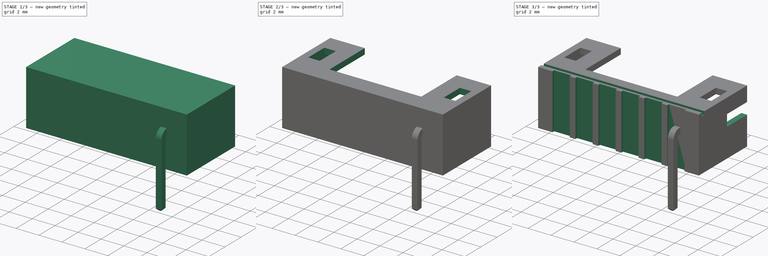
[diagram: build sequence overview — one tinted view per stage of 3, left to right]
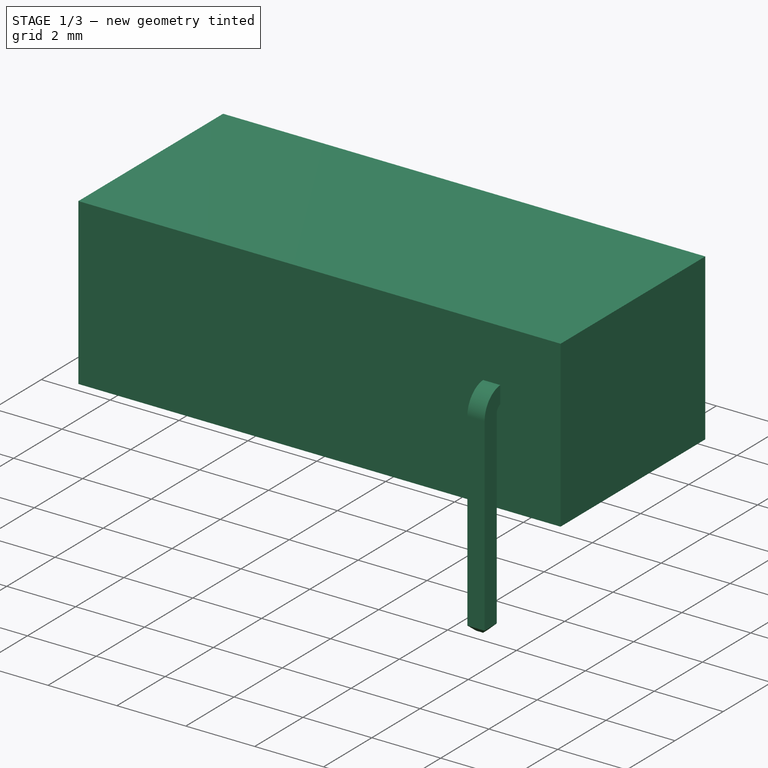
[diagram: stage 1 of 3 — iso view after this stage's code; geometry added in this stage tinted green]
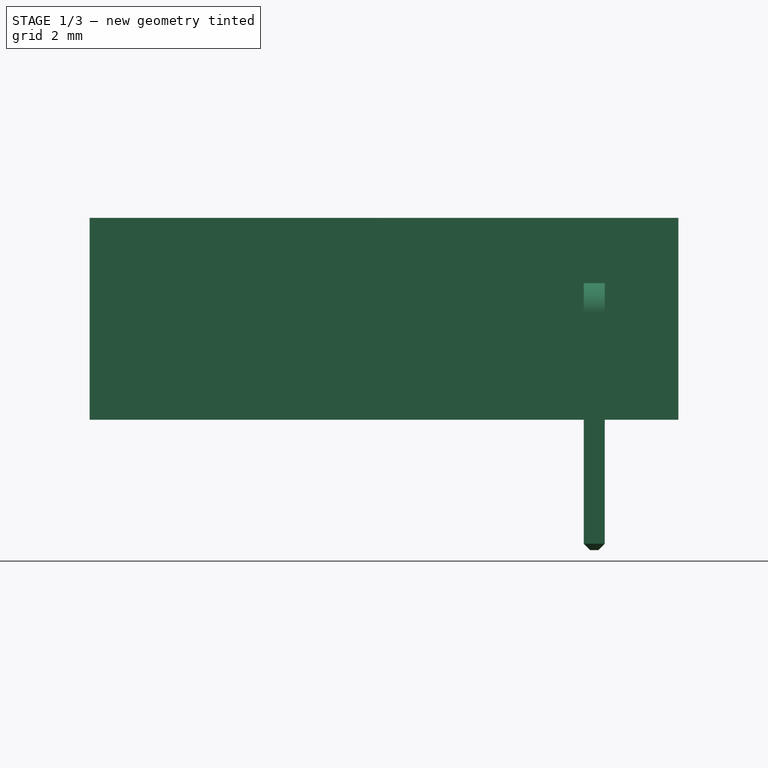
[diagram: stage 1 of 3 — front view after this stage's code; geometry added in this stage tinted green]
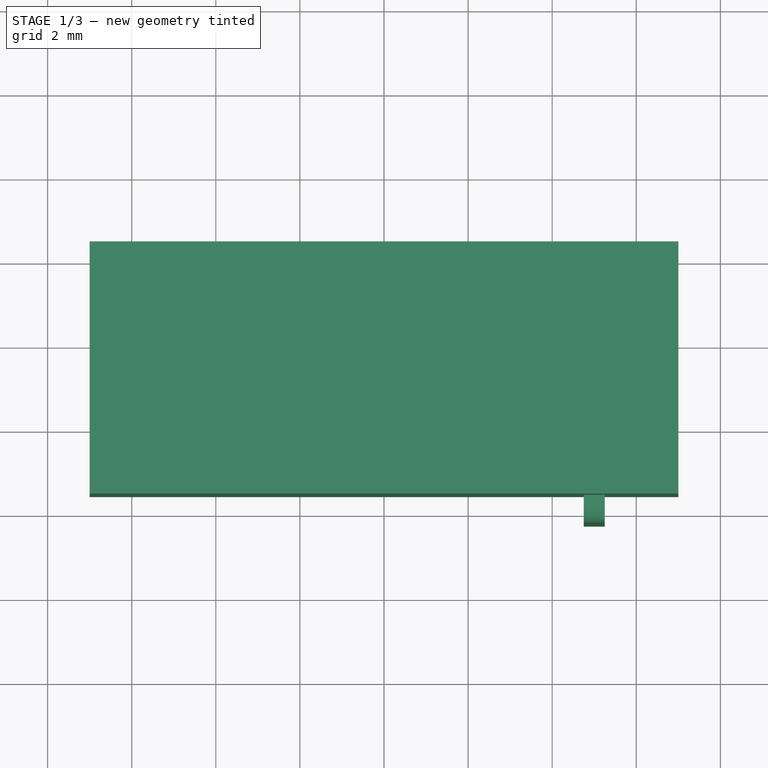
[diagram: stage 1 of 3 — top view after this stage's code; geometry added in this stage tinted green]
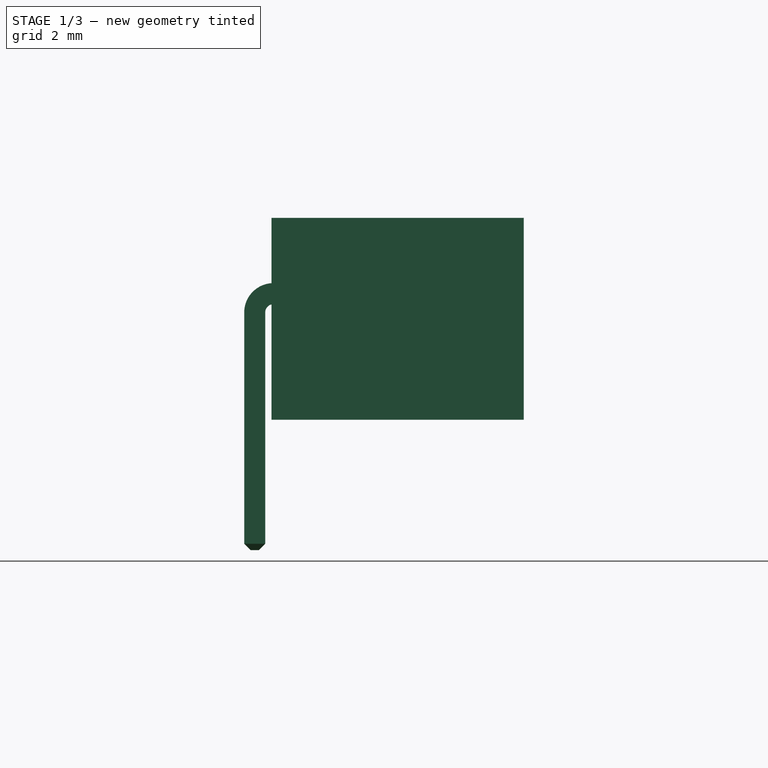
[diagram: stage 1 of 3 — right view after this stage's code; geometry added in this stage tinted green]
FCSTD DOCUMENT  (FreeCAD 0.20R29177 +426 (Git))
Label: Connector4P
License: All rights reserved
LicenseURL: http://en.wikipedia.org/wiki/All_rights_reserved
objects: Sketcher::SketchObject×6, App::Link×5, PartDesign::Pocket×3, PartDesign::Pad×2, PartDesign::Body×2, PartDesign::Thickness×1, PartDesign::LinearPattern×1, PartDesign::Chamfer×1, Spreadsheet::Sheet×1, App::Part×1
note: 23 computed .brp shape members not serialized (recipe doc carries the construction recipe); baked Part::Feature solids carry a one-line shape summary decoded from their .brp

FEATURE [Sketcher::SketchObject] Sketch
  FullyConstrained = true
  MapMode = 5
  Support = -> [XY_Plane]
  expr: Constraints[9] = 2 * <<Spreadsheet>>.Pins + 2
  sketch-geometry (4):
    g0: LineSegment StartX=-7 StartY=0.4 StartZ=0 EndX=7 EndY=0.4 EndZ=0
    g1: LineSegment StartX=7 StartY=0.4 StartZ=0 EndX=7 EndY=6.4 EndZ=0
    g2: LineSegment StartX=7 StartY=6.4 StartZ=0 EndX=-7 EndY=6.4 EndZ=0
    g3: LineSegment StartX=-7 StartY=6.4 StartZ=0 EndX=-7 EndY=0.4 EndZ=0
  constraints (11):
    c: Coincident(g0,g1)
    c: Coincident(g1,g2)
    c: Coincident(g2,g3)
    c: Coincident(g3,g0)
    c: Horizontal(g0)
    c: Vertical(g1)
    c: Vertical(g3)
    c: DistanceY(g2) = 6.4
    c: DistanceY(g3,g3) = 6
    c: DistanceX(g2,g2) = 14
    c: Symmetric(g2,g1,g-2)
FEATURE [PartDesign::Pad] Pad
  Direction = (0,0,1)
  Length = 4.8
  Length2 = 10
  Profile = -> Sketch
  ReferenceAxis = -> Sketch [N_Axis]
  Type = 0
FEATURE [PartDesign::Body] Body  label="Housing"
  Group = -> [Sketch,Pad,Thickness,Sketch001,Pocket,Sketch002,Pocket001,Sketch003,Sketch004,Pocket002,LinearPattern]
  Origin = -> Origin
  Tip = -> LinearPattern
FEATURE [Sketcher::SketchObject] Sketch005
  AttachmentOffset = pos=(0,0,5) rot=(0,0,1;0rad)
  FullyConstrained = true
  MapMode = 5
  Placement = pos=(5,-1.1e-15,1.1e-15) rot=(0.57735,0.57735,0.57735;2.0944rad)
  Support = -> [YZ_Plane001]
  expr: .AttachmentOffset.Base.z = <<Spreadsheet>>.Pins - 1
  sketch-geometry (9):
    g0: LineSegment StartX=-0.25 StartY=-3.1 StartZ=0 EndX=-0.25 EndY=2.55 EndZ=0
    g1: ArcOfCircle CenterX=0.45 CenterY=2.55 CenterZ=0 NormalX=0 NormalY=0 NormalZ=1 AngleXU=0 Radius=0.7 StartAngle=1.5708 EndAngle=3.14159
    g2: LineSegment StartX=0.45 StartY=3.25 StartZ=0 EndX=5.6 EndY=3.25 EndZ=0
    g3: LineSegment StartX=5.6 StartY=3.25 StartZ=0 EndX=5.6 EndY=2.75 EndZ=0
    g4: LineSegment StartX=5.6 StartY=2.75 StartZ=0 EndX=0.45 EndY=2.75 EndZ=0
    g5: LineSegment StartX=0.25 StartY=2.55 StartZ=0 EndX=0.25 EndY=-3.1 EndZ=0
    g6: LineSegment StartX=0.25 StartY=-3.1 StartZ=0 EndX=-0.25 EndY=-3.1 EndZ=0
    g7: ArcOfCircle CenterX=0.45 CenterY=2.55 CenterZ=0 NormalX=0 NormalY=0 NormalZ=1 AngleXU=0 Radius=0.2 StartAngle=1.5708 EndAngle=3.14159
    g8: GeomPoint X=5.6 Y=3 Z=0
  constraints (21):
    c: Vertical(g0)
    c: Tangent(g0,g1) = 1.5708
    c: Tangent(g1,g2) = 1.5708
    c: Coincident(g2,g3)
    c: Coincident(g3,g4)
    c: Horizontal(g4)
    c: Vertical(g5)
    c: Coincident(g5,g6)
    c: Coincident(g6,g0)
    c: Horizontal(g2)
    c: Vertical(g3)
    c: Tangent(g4,g7) = -1.5708
    c: Tangent(g5,g7) = -1.5708
    c: Coincident(g7,g1)
    c: Symmetric(g3,g3,g8)
    c: DistanceY(g8) = 3
    c: Symmetric(g0,g5,g-2)
    c: DistanceY(g0) = -3.1
    c: DistanceX(g6,g6) = 0.5
    c: Radius(g7) = 0.2
    c: DistanceX(g2) = 5.6
FEATURE [PartDesign::Pad] Pad001
  Direction = (1,-2e-16,3e-16)
  Length = 0.5
  Length2 = 10
  Midplane = true
  Placement = pos=(0,0,0) rot=(0.57735,0.57735,0.57735;2.0944rad)
  Profile = -> Sketch005
  ReferenceAxis = -> Sketch005 [N_Axis]
  Type = 0
FEATURE [App::Link] Link  label="Pin2"
  LinkPlacement = pos=(-2,2.38419e-07,0) rot=(0,0,1;0rad)
  LinkedObject = -> Body001
  Placement = pos=(-2,2.38419e-07,0) rot=(0,0,1;0rad)
FEATURE [App::Link] Link001  label="Pin3"
  LinkPlacement = pos=(-4,4.76837e-07,0) rot=(0,0,1;0rad)
  LinkedObject = -> Body001
  Placement = pos=(-4,4.76837e-07,0) rot=(0,0,1;0rad)
FEATURE [App::Link] Link002  label="Pin4"
  LinkPlacement = pos=(-6,7.15256e-07,0) rot=(0,0,1;0rad)
  LinkedObject = -> Body001
  Placement = pos=(-6,7.15256e-07,0) rot=(0,0,1;0rad)
FEATURE [PartDesign::Chamfer] Chamfer
  Angle = 45
  Base = -> Pad001 [Face4,Face8]
  BaseFeature = -> Pad001
  ChamferType = 0
  FlipDirection = false
  Placement = pos=(0,0,0) rot=(0.57735,0.57735,0.57735;2.0944rad)
  Size = 0.15
  Size2 = 1
  SupportTransform = false
  UseAllEdges = false
FEATURE [PartDesign::Body] Body001  label="Pin1"
  Group = -> [Sketch005,Pad001,Chamfer]
  Origin = -> Origin001
  Tip = -> Chamfer
FEATURE [Spreadsheet::Sheet] Spreadsheet
  cells = A1=Pins; B1(Pins)=6
FEATURE [App::Link] Link003  label="Pin5"
  LinkPlacement = pos=(-8,9.53674e-07,0) rot=(0,0,1;0rad)
  LinkedObject = -> Body001
  Placement = pos=(-8,9.53674e-07,0) rot=(0,0,1;0rad)
FEATURE [App::Link] Link004  label="Pin6"
  LinkPlacement = pos=(-10,1.19209e-06,0) rot=(0,0,1;0rad)
  LinkedObject = -> Body001
  Placement = pos=(-10,1.19209e-06,0) rot=(0,0,1;0rad)
FEATURE [App::Part] Part  label="Connector P=2.0 6x"
  Group = -> [Body,Body001,Link001,Link,Link002,Link003,Link004]
  Origin = -> Origin002
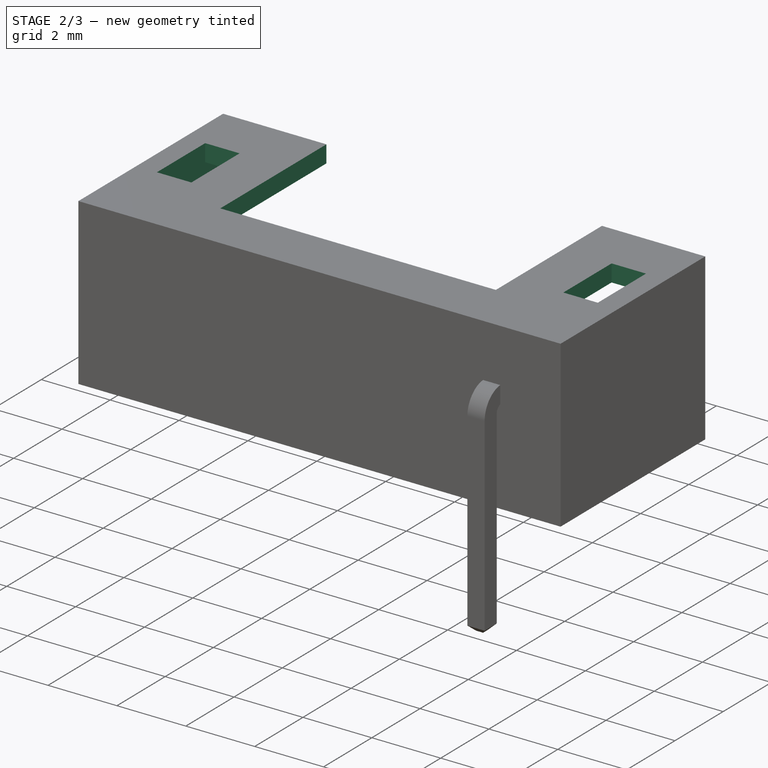
[diagram: stage 2 of 3 — iso view after this stage's code; geometry added in this stage tinted green]
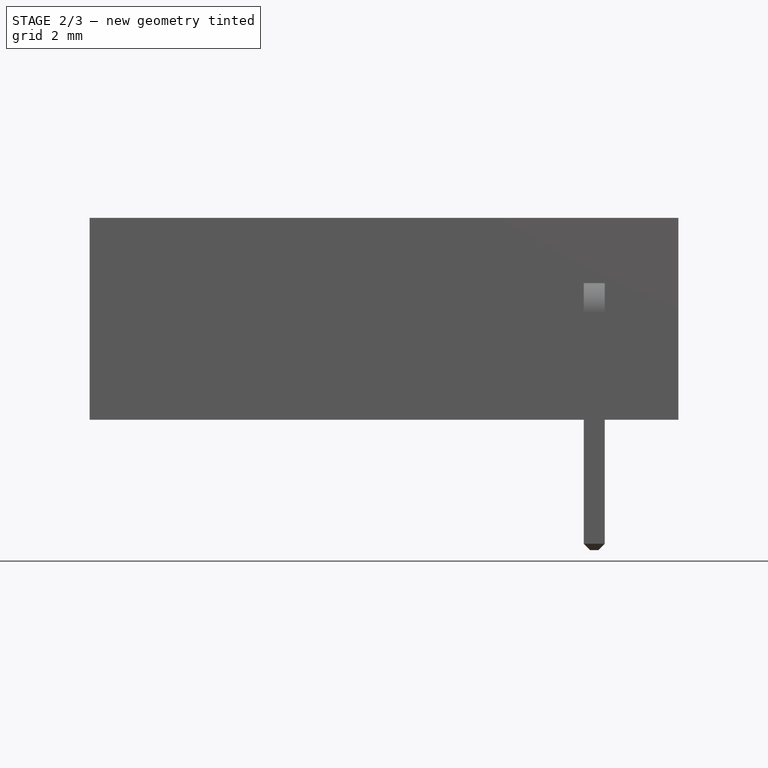
[diagram: stage 2 of 3 — front view after this stage's code; geometry added in this stage tinted green]
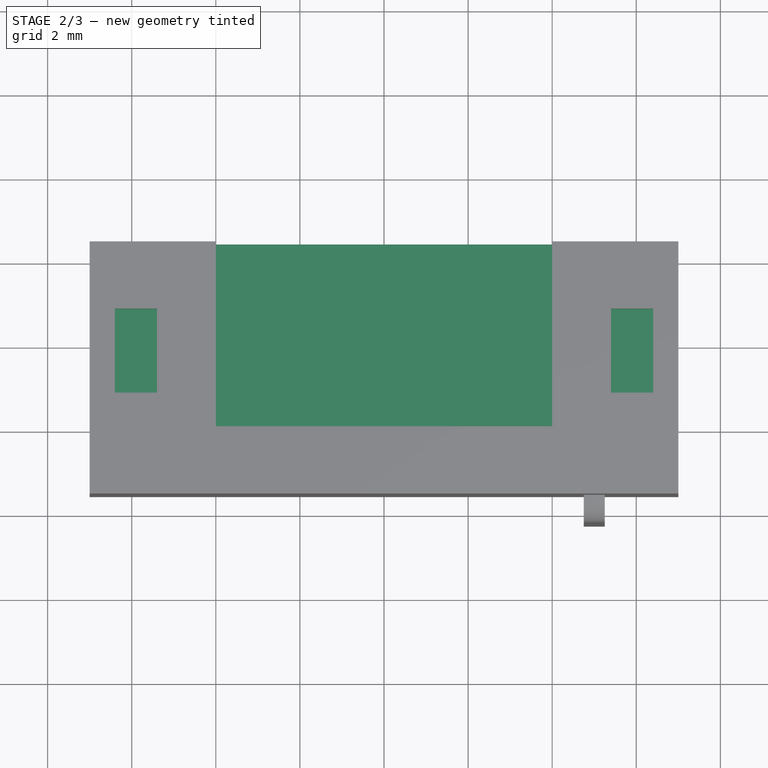
[diagram: stage 2 of 3 — top view after this stage's code; geometry added in this stage tinted green]
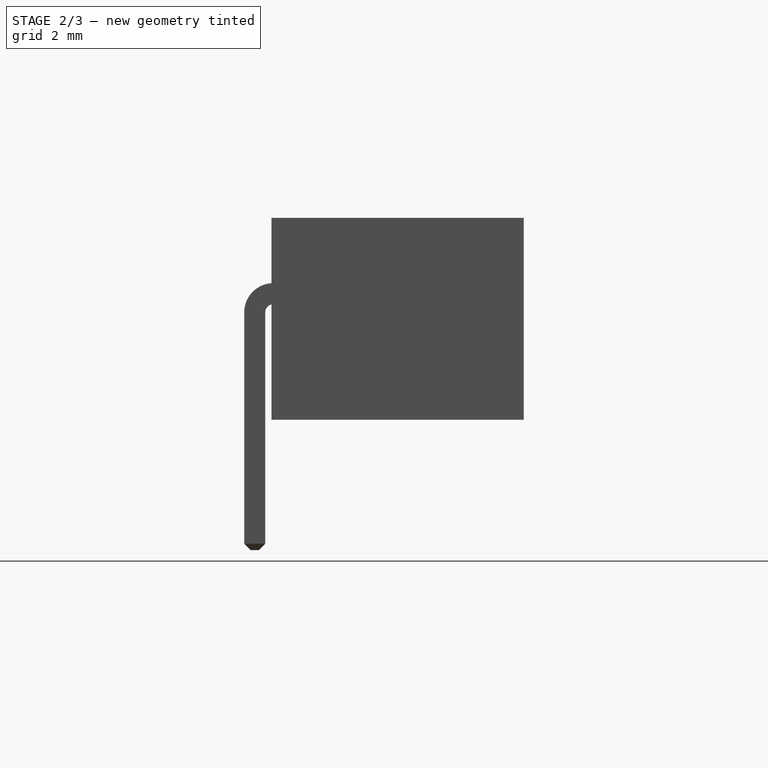
[diagram: stage 2 of 3 — right view after this stage's code; geometry added in this stage tinted green]
FEATURE [PartDesign::Thickness] Thickness
  Base = -> Pad [Face3]
  BaseFeature = -> Pad
  Intersection = false
  Join = 0
  Mode = 0
  Reversed = true
  SupportTransform = false
  Value = 0.5
FEATURE [Sketcher::SketchObject] Sketch001
  AttachmentOffset = pos=(0,0,4.8) rot=(0,0,1;0rad)
  ExternalGeometry = -> [Sketch]
  FullyConstrained = true
  MapMode = 5
  Placement = pos=(0,0,4.8) rot=(0,0,1;0rad)
  Support = -> [XY_Plane]
  sketch-geometry (12):
    g0: LineSegment StartX=-4 StartY=6.4 StartZ=0 EndX=4 EndY=6.4 EndZ=0
    g1: LineSegment StartX=4 StartY=6.4 StartZ=0 EndX=4 EndY=2 EndZ=0
    g2: LineSegment StartX=4 StartY=2 StartZ=0 EndX=-4 EndY=2 EndZ=0
    g3: LineSegment StartX=-4 StartY=2 StartZ=0 EndX=-4 EndY=6.4 EndZ=0
    g4: LineSegment StartX=6.4 StartY=4.8 StartZ=0 EndX=5.4 EndY=4.8 EndZ=0
    g5: LineSegment StartX=5.4 StartY=4.8 StartZ=0 EndX=5.4 EndY=2.8 EndZ=0
    g6: LineSegment StartX=5.4 StartY=2.8 StartZ=0 EndX=6.4 EndY=2.8 EndZ=0
    g7: LineSegment StartX=6.4 StartY=2.8 StartZ=0 EndX=6.4 EndY=4.8 EndZ=0
    g8: LineSegment StartX=-5.4 StartY=4.8 StartZ=0 EndX=-6.4 EndY=4.8 EndZ=0
    g9: LineSegment StartX=-6.4 StartY=4.8 StartZ=0 EndX=-6.4 EndY=2.8 EndZ=0
    g10: LineSegment StartX=-6.4 StartY=2.8 StartZ=0 EndX=-5.4 EndY=2.8 EndZ=0
    g11: LineSegment StartX=-5.4 StartY=2.8 StartZ=0 EndX=-5.4 EndY=4.8 EndZ=0
  constraints (33):
    c: Coincident(g0,g1)
    c: Coincident(g1,g2)
    c: Coincident(g2,g3)
    c: Coincident(g3,g0)
    c: Horizontal(g2)
    c: Vertical(g1)
    c: Vertical(g3)
    c: Symmetric(g0,g0,g-2)
    c: PointOnObject(g0,g-3)
    c: DistanceY(g3,g3) = 4.4
    c: Coincident(g4,g5)
    c: Coincident(g5,g6)
    c: Coincident(g6,g7)
    c: Coincident(g7,g4)
    c: Horizontal(g4)
    c: Horizontal(g6)
    c: Vertical(g5)
    c: Vertical(g7)
    c: Coincident(g8,g9)
    c: Coincident(g9,g10)
    c: Coincident(g10,g11)
    c: Coincident(g11,g8)
    c: Horizontal(g8)
    c: Horizontal(g10)
    c: Vertical(g9)
    c: Vertical(g11)
    c: Symmetric(g8,g4,g-2)
    c: Symmetric(g9,g6,g-2)
    c: DistanceX(g8,g8) = 1
    c: DistanceY(g11,g11) = 2
    c: DistanceY(g8,g-3) = 1.6
    c: DistanceX(g-3,g8) = 0.6
    c: DistanceX(g-3,g0) = 3
FEATURE [PartDesign::Pocket] Pocket
  BaseFeature = -> Thickness
  Direction = (0,0,-1)
  Length = 5
  Length2 = 5
  Profile = -> Sketch001
  ReferenceAxis = -> Sketch001 [N_Axis]
  Type = 2
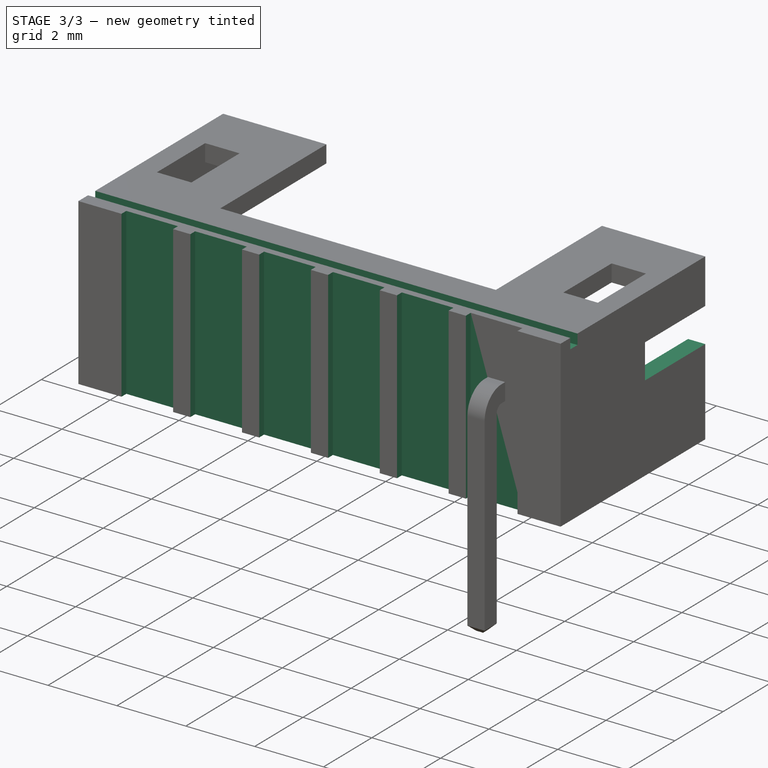
[diagram: stage 3 of 3 — iso view after this stage's code; geometry added in this stage tinted green]
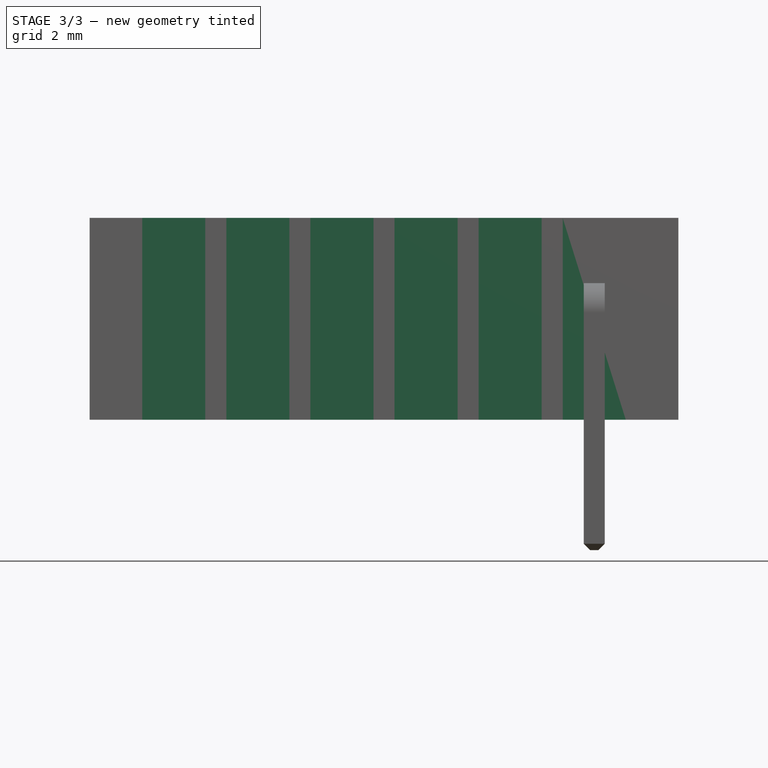
[diagram: stage 3 of 3 — front view after this stage's code; geometry added in this stage tinted green]
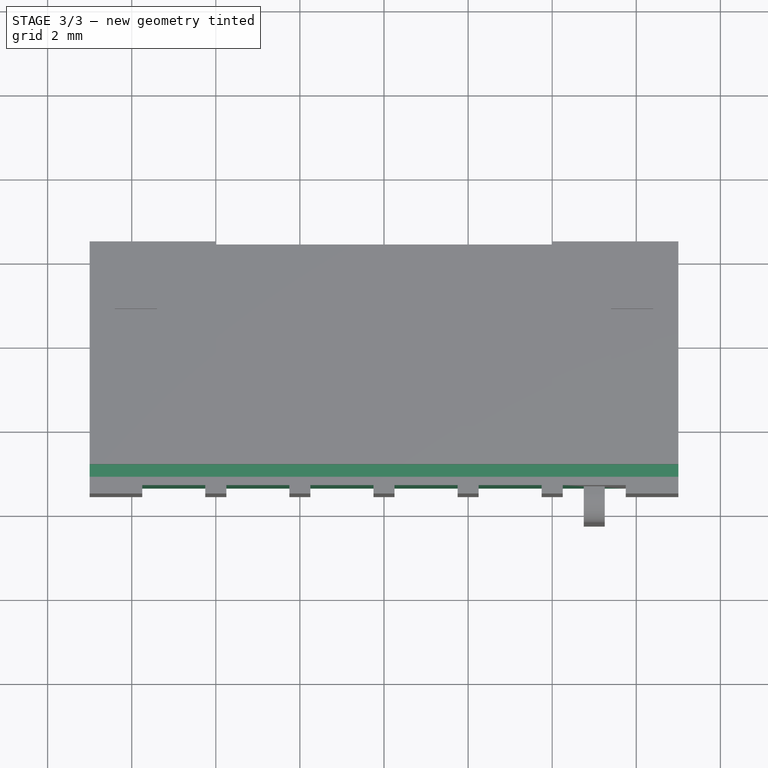
[diagram: stage 3 of 3 — top view after this stage's code; geometry added in this stage tinted green]
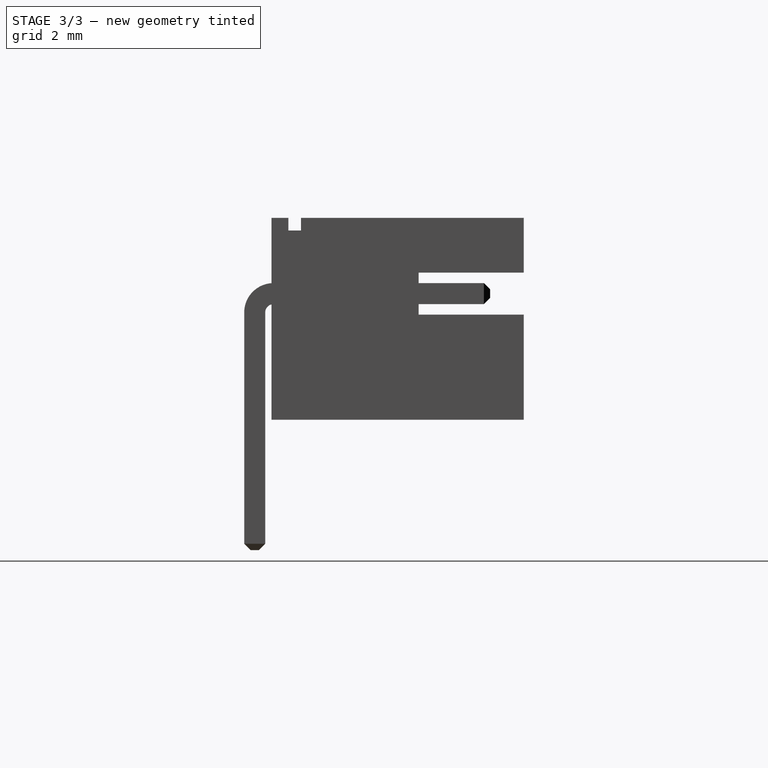
[diagram: stage 3 of 3 — right view after this stage's code; geometry added in this stage tinted green]
FEATURE [Sketcher::SketchObject] Sketch002
  ExternalGeometry = -> [Sketch]
  FullyConstrained = true
  MapMode = 5
  Placement = pos=(0,0,0) rot=(0.57735,0.57735,0.57735;2.0944rad)
  Support = -> [YZ_Plane]
  expr: Constraints[24] = <<Pad>>.Length
  sketch-geometry (9):
    g0: LineSegment StartX=3.9 StartY=3.5 StartZ=0 EndX=6.4 EndY=3.5 EndZ=0
    g1: LineSegment StartX=6.4 StartY=3.5 StartZ=0 EndX=6.4 EndY=2.5 EndZ=0
    g2: LineSegment StartX=6.4 StartY=2.5 StartZ=0 EndX=3.9 EndY=2.5 EndZ=0
    g3: LineSegment StartX=3.9 StartY=2.5 StartZ=0 EndX=3.9 EndY=3.5 EndZ=0
    g4: GeomPoint X=6.4 Y=3 Z=0
    g5: LineSegment StartX=0.8 StartY=4.8 StartZ=0 EndX=1.1 EndY=4.8 EndZ=0
    g6: LineSegment StartX=1.1 StartY=4.8 StartZ=0 EndX=1.1 EndY=4.5 EndZ=0
    g7: LineSegment StartX=1.1 StartY=4.5 StartZ=0 EndX=0.8 EndY=4.5 EndZ=0
    g8: LineSegment StartX=0.8 StartY=4.5 StartZ=0 EndX=0.8 EndY=4.8 EndZ=0
  constraints (25):
    c: Coincident(g0,g1)
    c: Coincident(g1,g2)
    c: Coincident(g2,g3)
    c: Coincident(g3,g0)
    c: Horizontal(g0)
    c: Horizontal(g2)
    c: Vertical(g1)
    c: Vertical(g3)
    c: Vertical(g-3,g1)
    c: Symmetric(g1,g1,g4)
    c: DistanceY(g4) = 3
    c: DistanceY(g3,g3) = 1
    c: DistanceX(g0,g0) = 2.5
    c: Coincident(g5,g6)
    c: Coincident(g6,g7)
    c: Coincident(g7,g8)
    c: Coincident(g8,g5)
    c: Horizontal(g5)
    c: Horizontal(g7)
    c: Vertical(g6)
    c: Vertical(g8)
    c: DistanceX(g5) = 0.8
    c: DistanceX(g5,g5) = 0.3
    c: Equal(g5,g8)
    c: DistanceY(g5) = 4.8
FEATURE [PartDesign::Pocket] Pocket001
  BaseFeature = -> Pocket
  Direction = (-1,2e-16,-3e-16)
  Length = 5
  Length2 = 5
  Midplane = true
  Profile = -> Sketch002
  ReferenceAxis = -> Sketch002 [N_Axis]
  Type = 1
FEATURE [Sketcher::SketchObject] Sketch003
  FullyConstrained = true
  MapMode = 5
  Support = -> [XY_Plane]
FEATURE [Sketcher::SketchObject] Sketch004
  ExternalGeometry = -> [Sketch]
  FullyConstrained = true
  MapMode = 5
  Support = -> [XY_Plane]
  expr: Constraints[10] = -(<<Spreadsheet>>.Pins - 1)
  sketch-geometry (5):
    g0: LineSegment StartX=-5.75 StartY=0.4 StartZ=0 EndX=-4.25 EndY=0.4 EndZ=0
    g1: LineSegment StartX=-4.25 StartY=0.4 StartZ=0 EndX=-4.25 EndY=0.6 EndZ=0
    g2: LineSegment StartX=-4.25 StartY=0.6 StartZ=0 EndX=-5.75 EndY=0.6 EndZ=0
    g3: LineSegment StartX=-5.75 StartY=0.6 StartZ=0 EndX=-5.75 EndY=0.4 EndZ=0
    g4: GeomPoint X=-5 Y=0.4 Z=0
  constraints (13):
    c: Coincident(g0,g1)
    c: Coincident(g1,g2)
    c: Coincident(g2,g3)
    c: Coincident(g3,g0)
    c: Horizontal(g0)
    c: Horizontal(g2)
    c: Vertical(g1)
    c: Vertical(g3)
    c: DistanceX(g0,g0) = 1.5
    c: Symmetric(g0,g0,g4)
    c: DistanceX(g4) = -5
    c: PointOnObject(g0,g-3)
    c: DistanceY(g1,g1) = 0.2
FEATURE [PartDesign::Pocket] Pocket002
  BaseFeature = -> Pocket001
  Direction = (0,0,-1)
  Length = 5
  Length2 = 5
  Midplane = true
  Profile = -> Sketch004
  ReferenceAxis = -> Sketch004 [N_Axis]
  Type = 1
FEATURE [PartDesign::LinearPattern] LinearPattern
  BaseFeature = -> Pocket002
  Direction = -> Sketch004 [H_Axis]
  Length = 10
  Occurrences = 6
  Originals = -> [Pocket002]
  expr: Length = (<<Spreadsheet>>.Pins - 1) * 2
  expr: Occurrences = <<Spreadsheet>>.Pins
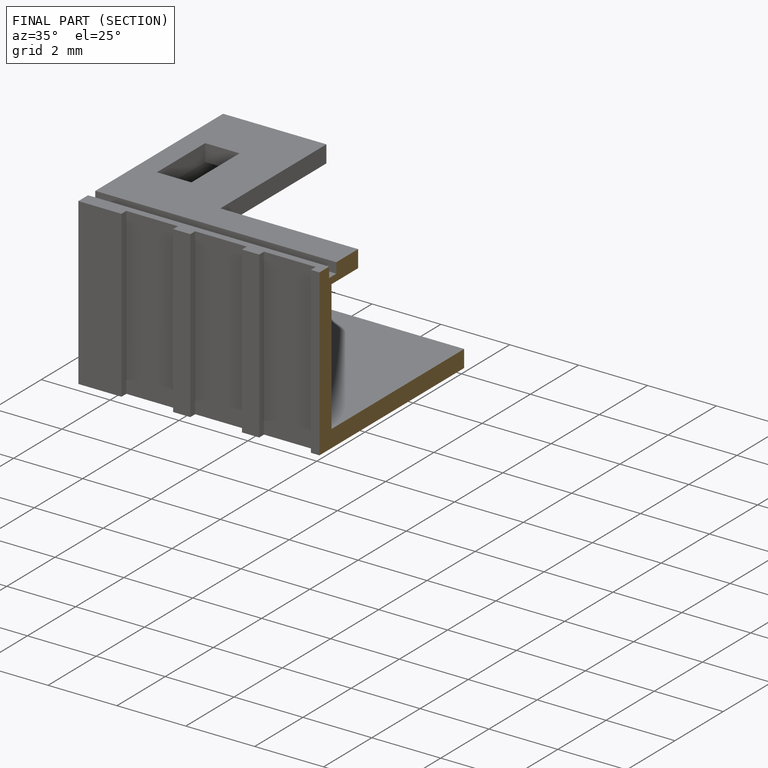
[diagram: finished part — half-section view (interior)]
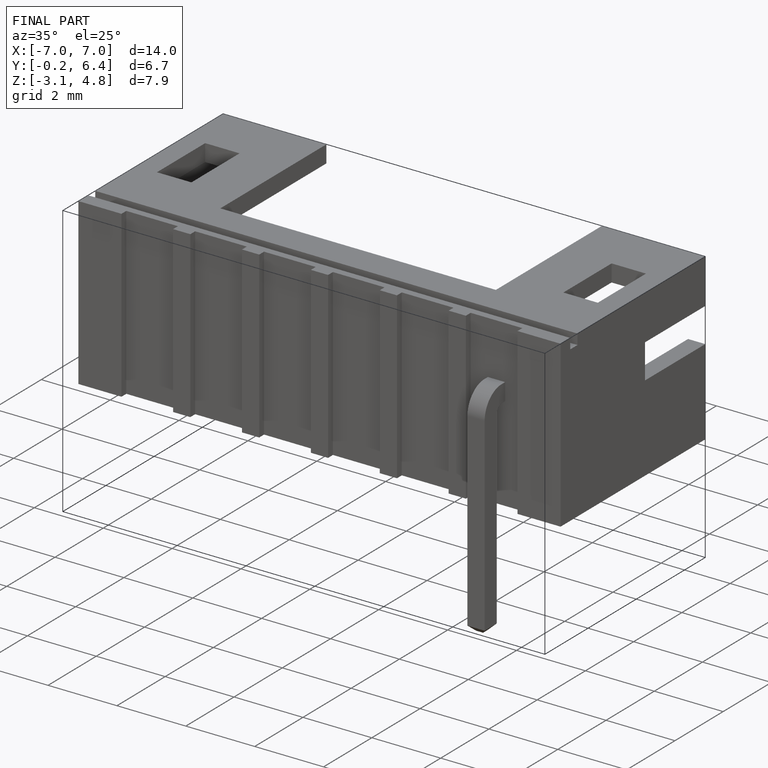
[diagram: finished part — iso view with bounding-box wireframe]
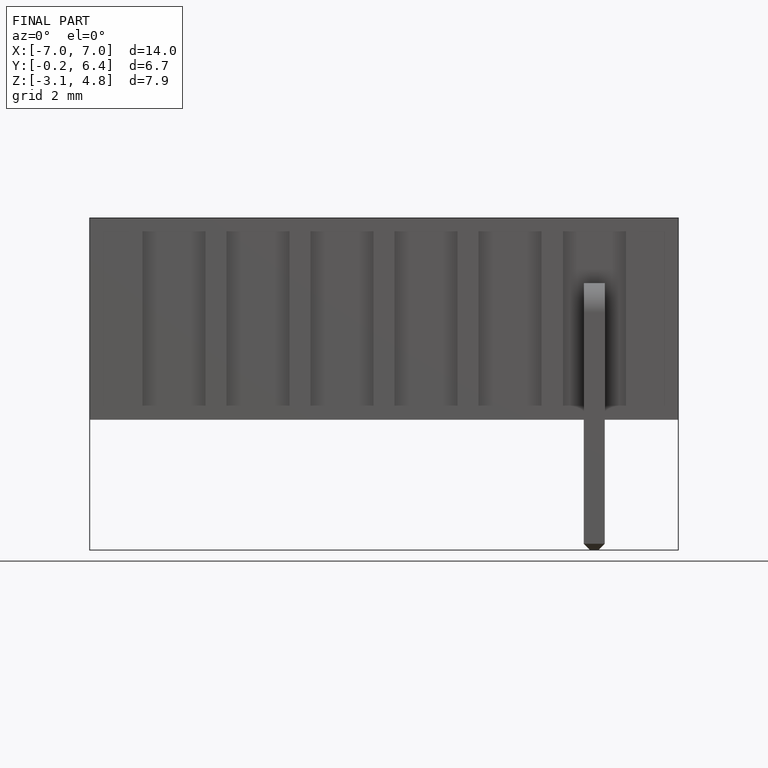
[diagram: finished part — front view with bounding-box wireframe]
